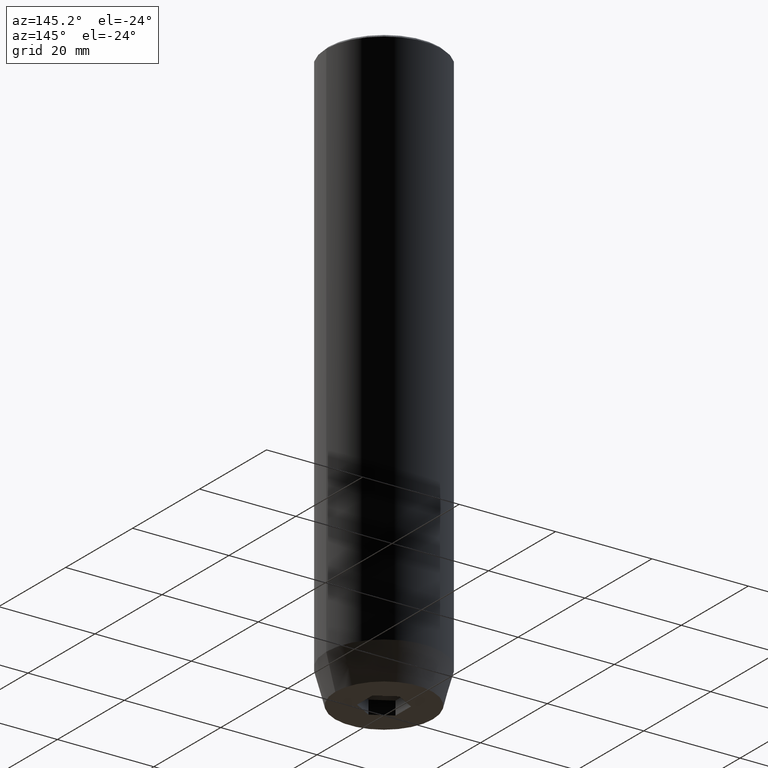
[diagram: clean part render]
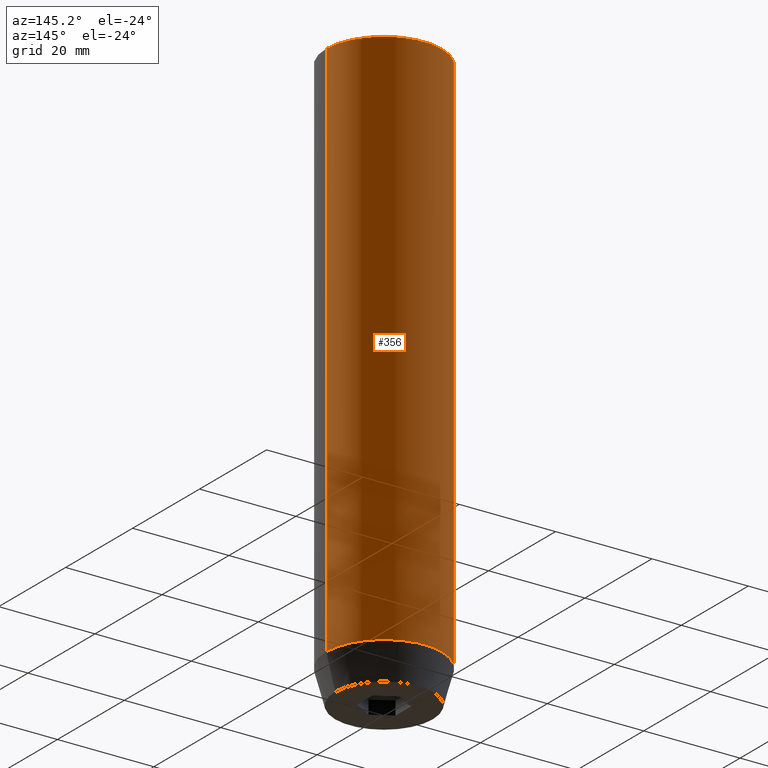
[diagram: same view with one face highlighted and labeled with its STEP entity id]
A machine part, auxiliary view. The second image highlights one B-rep face of the part: STEP entity #356.
In plain terms, the highlighted cylindrical surface (partial cylindrical patch) has radius 12 mm, axis along (-0, -0, 1).
Its self-contained STEP definition (entity closure, byte-faithful):
#4 = DIRECTION ( 'NONE',  ( -0.000000000000000000, -0.000000000000000000, 1.000000000000000000 ) ) ;
#9 = LINE ( 'NONE', #365, #400 ) ;
#26 = CARTESIAN_POINT ( 'NONE',  ( 0.000000000000000000, 0.000000000000000000, 0.000000000000000000 ) ) ;
#32 = LINE ( 'NONE', #534, #37 ) ;
#35 = FACE_OUTER_BOUND ( 'NONE', #244, .T. ) ;
#37 = VECTOR ( 'NONE', #433, 1000.000000000000000 ) ;
#80 = VERTEX_POINT ( 'NONE', #227 ) ;
#96 = CARTESIAN_POINT ( 'NONE',  ( 0.000000000000000000, 0.000000000000000000, -0.5000000000000056621 ) ) ;
#111 = AXIS2_PLACEMENT_3D ( 'NONE', #313, #126, #489 ) ;
#118 = DIRECTION ( 'NONE',  ( 1.000000000000000000, 0.000000000000000000, 0.000000000000000000 ) ) ;
#124 = EDGE_CURVE ( 'NONE', #177, #80, #9, .T. ) ;
#126 = DIRECTION ( 'NONE',  ( -0.000000000000000000, -0.000000000000000000, 1.000000000000000000 ) ) ;
#143 = DIRECTION ( 'NONE',  ( 1.000000000000000000, 0.000000000000000000, 0.000000000000000000 ) ) ;
#154 = EDGE_CURVE ( 'NONE', #80, #468, #538, .T. ) ;
#177 = VERTEX_POINT ( 'NONE', #422 ) ;
#206 = ORIENTED_EDGE ( 'NONE', *, *, #427, .F. ) ;
#227 = CARTESIAN_POINT ( 'NONE',  ( -12.00000000000000000, 1.469576158976823947E-15, -0.5000000000000056621 ) ) ;
#244 = EDGE_LOOP ( 'NONE', ( #520, #447, #253, #206 ) ) ;
#253 = ORIENTED_EDGE ( 'NONE', *, *, #154, .T. ) ;
#260 = CYLINDRICAL_SURFACE ( 'NONE', #401, 12.00000000000000000 ) ;
#303 = CARTESIAN_POINT ( 'NONE',  ( 12.00000000000000000, 0.000000000000000000, -112.9999999999999858 ) ) ;
#313 = CARTESIAN_POINT ( 'NONE',  ( 0.000000000000000000, 0.000000000000000000, -112.9999999999999858 ) ) ;
#356 = ADVANCED_FACE ( 'NONE', ( #35 ), #260, .T. ) ;
#365 = CARTESIAN_POINT ( 'NONE',  ( -12.00000000000000000, 1.469576158976823947E-15, 0.000000000000000000 ) ) ;
#374 = CIRCLE ( 'NONE', #111, 12.00000000000000000 ) ;
#386 = VERTEX_POINT ( 'NONE', #303 ) ;
#400 = VECTOR ( 'NONE', #4, 1000.000000000000000 ) ;
#401 = AXIS2_PLACEMENT_3D ( 'NONE', #26, #525, #118 ) ;
#418 = AXIS2_PLACEMENT_3D ( 'NONE', #96, #497, #143 ) ;
#422 = CARTESIAN_POINT ( 'NONE',  ( -12.00000000000000000, 1.469576158976823947E-15, -112.9999999999999858 ) ) ;
#427 = EDGE_CURVE ( 'NONE', #386, #468, #32, .T. ) ;
#433 = DIRECTION ( 'NONE',  ( -0.000000000000000000, -0.000000000000000000, 1.000000000000000000 ) ) ;
#444 = EDGE_CURVE ( 'NONE', #386, #177, #374, .T. ) ;
#447 = ORIENTED_EDGE ( 'NONE', *, *, #124, .T. ) ;
#468 = VERTEX_POINT ( 'NONE', #545 ) ;
#489 = DIRECTION ( 'NONE',  ( 1.000000000000000000, 0.000000000000000000, 0.000000000000000000 ) ) ;
#497 = DIRECTION ( 'NONE',  ( 0.000000000000000000, 0.000000000000000000, -1.000000000000000000 ) ) ;
#520 = ORIENTED_EDGE ( 'NONE', *, *, #444, .T. ) ;
#525 = DIRECTION ( 'NONE',  ( -0.000000000000000000, -0.000000000000000000, 1.000000000000000000 ) ) ;
#534 = CARTESIAN_POINT ( 'NONE',  ( 12.00000000000000000, 0.000000000000000000, 0.000000000000000000 ) ) ;
#538 = CIRCLE ( 'NONE', #418, 12.00000000000000000 ) ;
#545 = CARTESIAN_POINT ( 'NONE',  ( 12.00000000000000000, 0.000000000000000000, -0.5000000000000056621 ) ) ;